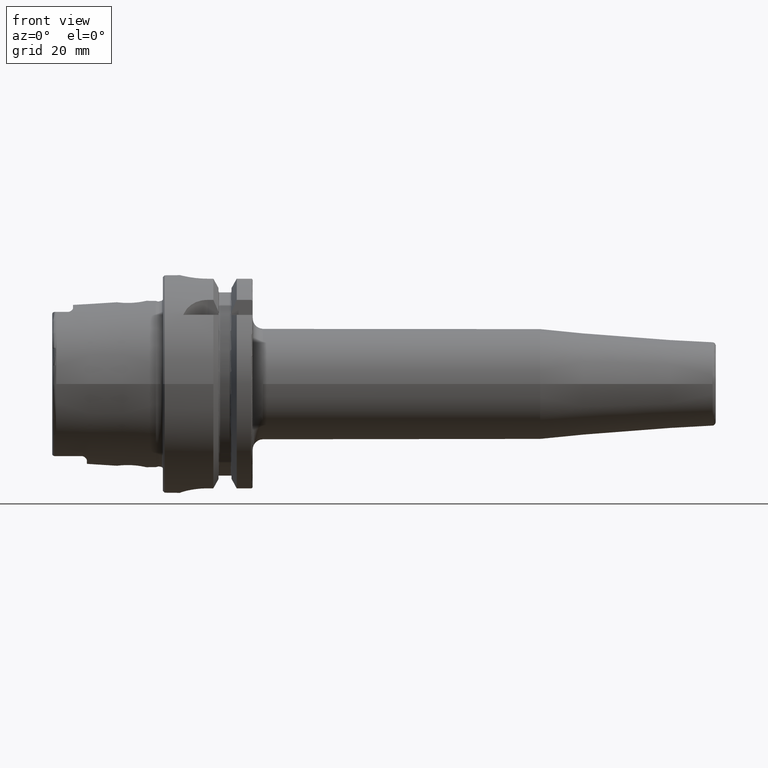
[diagram: clean part render]
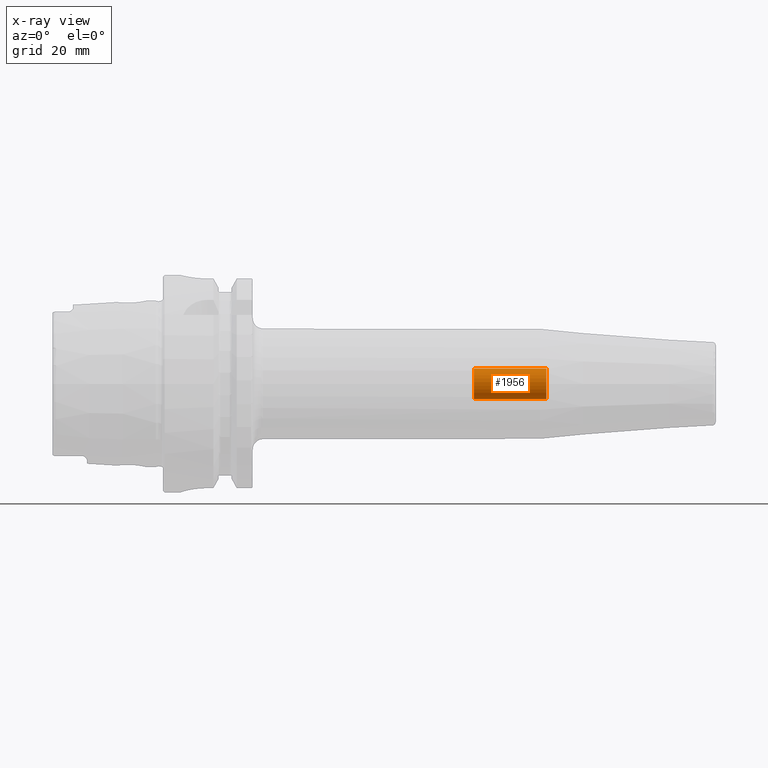
[diagram: x-ray — body ghosted, one internal face saturated and labeled with its STEP entity id]
A machine part, front view, then the same camera in x-ray: the body is ghosted and one INTERNAL B-rep face — a face not visible from any outside direction — is saturated and labeled: STEP entity #1956.
In plain terms, the highlighted cylindrical surface (bore or boss wall) has radius 4.4587 mm, axis along (1, 0, 0).
Its self-contained STEP definition (entity closure, byte-faithful):
#175=CYLINDRICAL_SURFACE('',#2100,4.458734);
#211=FACE_OUTER_BOUND('',#329,.T.);
#329=EDGE_LOOP('',(#1319,#1320,#1321,#1322));
#459=LINE('',#2967,#566);
#566=VECTOR('',#2361,4.458734);
#672=CIRCLE('',#2097,4.458734);
#675=CIRCLE('',#2101,4.458734);
#798=VERTEX_POINT('',#2957);
#801=VERTEX_POINT('',#2965);
#1001=EDGE_CURVE('',#798,#798,#672,.T.);
#1005=EDGE_CURVE('',#801,#801,#675,.T.);
#1006=EDGE_CURVE('',#801,#798,#459,.T.);
#1319=ORIENTED_EDGE('',*,*,#1005,.F.);
#1320=ORIENTED_EDGE('',*,*,#1006,.T.);
#1321=ORIENTED_EDGE('',*,*,#1001,.F.);
#1322=ORIENTED_EDGE('',*,*,#1006,.F.);
#1956=ADVANCED_FACE('',(#211),#175,.F.);
#2097=AXIS2_PLACEMENT_3D('',#2958,#2350,#2351);
#2100=AXIS2_PLACEMENT_3D('',#2964,#2357,#2358);
#2101=AXIS2_PLACEMENT_3D('',#2966,#2359,#2360);
#2350=DIRECTION('center_axis',(1.,0.,0.));
#2351=DIRECTION('ref_axis',(0.,0.,-1.));
#2357=DIRECTION('center_axis',(1.,0.,0.));
#2358=DIRECTION('ref_axis',(0.,0.,-1.));
#2359=DIRECTION('center_axis',(-1.,0.,0.));
#2360=DIRECTION('ref_axis',(0.,0.,-1.));
#2361=DIRECTION('',(-1.,0.,0.));
#2957=CARTESIAN_POINT('',(90.,-5.46037432134948E-16,4.458734));
#2958=CARTESIAN_POINT('Origin',(90.,0.,0.));
#2964=CARTESIAN_POINT('Origin',(100.5,0.,0.));
#2965=CARTESIAN_POINT('',(111.,-5.46037432134947E-16,4.458734));
#2966=CARTESIAN_POINT('Origin',(111.,0.,0.));
#2967=CARTESIAN_POINT('',(100.5,-5.46037432134947E-16,4.458734));